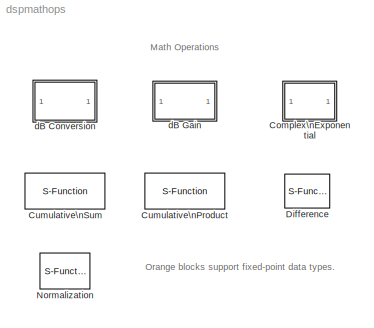
MODEL dspmathops
KIND library
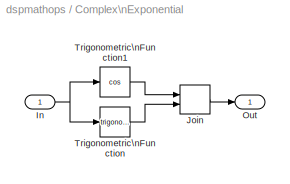
BLOCK [SubSystem] Complex\nExponential
  MaskDescription = Compute the complex exponential function of real inputs via\nEuler's formula, y = cos(x)+jsin(x).
  MaskDisplay = text(0.2, 0.55,'exp(jx)');
  MaskHelp = web(dspbhelp);
  MaskIconFrame = on
  MaskIconOpaque = on
  MaskIconRotate = none
  MaskIconUnits = normalized
  MaskType = Complex Exponential
  MinAlgLoopOccurrences = off
  Ports = [1, 1]
  PropExecContextAcrossSSBoundary = on
  RTWSystemCode = Auto
  TreatAsAtomicUnit = off
BLOCK [Inport] Complex\nExponential/In
  IconDisplay = Port number
  LatchInput = off
BLOCK [RealImagToComplex] Complex\nExponential/Join
  Input = Real and imag
  Ports = [2, 1]
BLOCK [Outport] Complex\nExponential/Out
  BusOutputAsStruct = off
  IconDisplay = Port number
BLOCK [Trigonometry] Complex\nExponential/Trigonometric\nFunction
  Ports = [1, 1]
BLOCK [Trigonometry] Complex\nExponential/Trigonometric\nFunction1
  Operator = cos
  Ports = [1, 1]
BLOCK [S-Function] Cumulative\nProduct
  CopyFcn = dspfixptcopycallback
  DialogController = dspDDGCreate
  DialogControllerArgs = DataTag0
  FunctionName = sdspcumsumprod
  MaskCallbackString = ||||||||||||||||
  MaskDescription = Cumulative product of input matrix or input vector elements along the specified dimension: rows, columns, or channels.  For 1-D and sample-based inputs, each element of the input matrix or vector is a channel.  For frame-based inputs, each column of the input matrix or vector is a channel.
  MaskDisplay = disp([s.str '\\nProduct'])\nport_label('input',s.i1,s.i1s);\nport_label('input',s.i2,s.i2s);\n
  MaskEnableString = on,on,on,on,on,on,on,on,on,on,on,on,on,on,on,on,on
  MaskHelp = web(dspbhelp);
  MaskIconFrame = on
  MaskIconOpaque = on
  MaskIconRotate = none
  MaskIconUnits = autoscale
  MaskInitialization = s = dspblkcumsumprod('icon');\nreset=reset_popup-1;\nfcn=1;\n\ndtInfo = dspGetFixptDataTypeInfo(gcbh,271);\n
  MaskPromptString = Multiply input along:|Reset port:|inter prod mode|inter prod wl|inter prod fl|prod output mode|prod output wl|prod output fl|accum mode|accum wl|accum fl|output mode|output wl|output fl|rm|om|Lock scaling
  MaskSelfModifiable = on
  MaskStyleString = popup(Columns|Rows|Channels (running product)),popup(None|Rising edge|Falling edge|Either edge|Non-zero sample),popup(Same as input|Binary point scaling|Slope and bias scaling),edit,edit,popup(Same as input|Binary point scaling|Slope and bias scaling),edit,edit,popup(Same as product output|Same as input|Binary point scaling|Slope and bias scaling),edit,edit,popup(Same as product output|Same as inp...<+96ch>
  MaskTabNameString = ,,,,,,,,,,,,,,,,
  MaskToolTipString = on,on,on,on,on,on,on,on,on,on,on,on,on,on,on,on,on
  MaskTunableValueString = off,off,off,off,off,off,off,off,off,off,off,off,off,off,off,off,off
  MaskType = Cumulative Product
  MaskValueString = Channels (running product)|None|Same as input|16|15|Same as input|32|30|Same as input|32|30|Same as input|16|15|Floor|off|off
  MaskVarAliasString = ,,,,,,,,,,,,,,,,
  MaskVariables = dim=@1;reset_popup=@2;interProdMode=@3;interProdWordLength=@4;interProdFracLength=@5;prodOutputMode=@6;prodOutputWordLength=@7;prodOutputFracLength=@8;accumMode=@9;accumWordLength=@10;accumFracLength=@11;outputMode=@12;outputWordLength=@13;outputFracLength=@14;roundingMode=@15;overflowMode=@16;LockScale=@17;
  MaskVisibilityString = on,on,on,on,on,on,on,on,on,on,on,on,on,on,on,on,on
  Parameters = dim,reset,fcn,dtInfo.interProdMode,dtInfo.interProdWordLength,dtInfo.interProdFracLength,dtInfo.prodOutputMode,dtInfo.prodOutputWordLength,dtInfo.prodOutputFracLength,dtInfo.accumMode,dtInfo.accumWordLength,dtInfo.accumFracLength,dtInfo.outputMode,dtInfo.outputWordLength,dtInfo.outputFracLength,dtInfo.roundingMode,dtInfo.overflowMode
  Ports = [1, 1]
BLOCK [S-Function] Cumulative\nSum
  CopyFcn = dspfixptcopycallback
  DialogController = dspDDGCreate
  DialogControllerArgs = DataTag1
  FunctionName = sdspcumsumprod
  MaskCallbackString = ||||||||||
  MaskDescription = Cumulative sum of input matrix or input vector elements along the specified dimension: rows, columns, or channels.  For 1-D and sample-based inputs, each element of the input matrix or vector is a channel.  For frame-based inputs, each column of the input matrix or vector is a channel.
  MaskDisplay = disp([s.str '\\nSum'])\nport_label('input',s.i1,s.i1s);\nport_label('input',s.i2,s.i2s);\n
  MaskEnableString = on,on,on,on,on,on,on,on,on,on,on
  MaskHelp = web(dspbhelp);
  MaskIconFrame = on
  MaskIconOpaque = on
  MaskIconRotate = none
  MaskIconUnits = autoscale
  MaskInitialization = s = dspblkcumsumprod('icon');\nreset=reset_popup-1;\nfcn=0;\n\ndtInfo = dspGetFixptDataTypeInfo(gcbh,7);
  MaskPromptString = Sum input along:|Reset port:|accMode|accWL|accFL|outputMode|outputWL|outputFL|rm|om|Lock scaling
  MaskSelfModifiable = on
  MaskStyleString = popup(Columns|Rows|Channels (running sum)),popup(None|Rising edge|Falling edge|Either edge|Non-zero sample),popup(Same as input|Binary point scaling|Slope and bias scaling),edit,edit,popup(Same as accumulator|Same as input|Binary point scaling|Slope and bias scaling),edit,edit,popup(Floor|Nearest),checkbox,checkbox
  MaskTabNameString = ,,,,,,,,,,
  MaskToolTipString = on,on,on,on,on,on,on,on,on,on,on
  MaskTunableValueString = off,off,off,off,off,off,off,off,off,off,off
  MaskType = Cumulative Sum
  MaskValueString = Channels (running sum)|None|Same as input|32|30|Same as accumulator|16|15|Floor|off|off
  MaskVarAliasString = ,,,,,,,,,,
  MaskVariables = dim=@1;reset_popup=@2;accumMode=@3;accumWordLength=@4;accumFracLength=@5;outputMode=@6;outputWordLength=@7;outputFracLength=@8;roundingMode=@9;overflowMode=@10;LockScale=@11;
  MaskVisibilityString = on,on,on,on,on,on,on,on,on,on,on
  Parameters = dim,reset,fcn,-1,0,0,-1,0,0,dtInfo.accumMode,dtInfo.accumWordLength,dtInfo.accumFracLength,dtInfo.outputMode,dtInfo.outputWordLength,dtInfo.outputFracLength,dtInfo.roundingMode,dtInfo.overflowMode
  Ports = [1, 1]
BLOCK [S-Function] Difference
  CopyFcn = dspfixptcopycallback
  DialogController = dspDDGCreate
  DialogControllerArgs = DataTag2
  FunctionName = sdspdiff2
  MaskCallbackString = |||||||||||
  MaskDescription = Difference between adjacent input elements.  For oriented inputs, difference along the specified dimension.
  MaskDisplay = disp(str)
  MaskEnableString = on,off,off,on,on,on,on,on,on,on,on,on
  MaskHelp = web(dspbhelp);
  MaskIconFrame = on
  MaskIconOpaque = on
  MaskIconRotate = none
  MaskIconUnits = autoscale
  MaskInitialization = if (dim==1), str='Row\\nDiff';\nelse str='Column\\nDiff';\nend\ndtInfo = dspGetFixptDataTypeInfo(gcbh,7);
  MaskPromptString = Difference along:|------- Show additional parameters -------|Allow overrides from DSP Fixed-Point Attributes blocks|Fixed-point output attributes:|Output word length:|Output fraction length:|Fixed-point accumulator attributes:|Accumulator word length:|Accumulator fraction length:|Round integer calculations toward:|Saturate on integer overflow|Lock scaling
  MaskSelfModifiable = on
  MaskStyleString = popup(Rows|Columns),checkbox,checkbox,popup(Same as accumulator|Same as input|Binary point scaling|Slope and bias scaling|User-defined),edit,edit,popup(Inherit via internal rule|Same as input|Binary point scaling|Slope and bias scaling|User-defined),edit,edit,popup(Floor|Nearest),checkbox,checkbox
  MaskTabNameString = ,,,,,,,,,,,
  MaskToolTipString = on,on,on,on,on,on,on,on,on,on,on,on
  MaskTunableValueString = off,off,off,off,off,off,off,off,off,off,off,off
  MaskType = Difference
  MaskValueString = Columns|off|on|Same as accumulator|16|15|Inherit via internal rule|32|30|Floor|off|off
  MaskVarAliasString = ,,,,,,,,,,,
  MaskVariables = dim=@1;additionalParams=@2;allowOverrides=@3;outputMode=@4;outputWordLength=@5;outputFracLength=@6;accumMode=@7;accumWordLength=@8;accumFracLength=@9;roundingMode=@10;overflowMode=@11;LockScale=@12;
  MaskVisibilityString = on,off,off,on,on,on,on,on,on,on,on,on
  Parameters = dim,dtInfo.accumMode,dtInfo.accumWordLength,dtInfo.accumFracLength,dtInfo.outputMode,dtInfo.outputWordLength,dtInfo.outputFracLength,dtInfo.roundingMode,dtInfo.overflowMode
  Ports = [1, 1]
BLOCK [S-Function] Normalization
  CopyFcn = dspfixptcopycallback
  DialogController = dspDDGCreate
  DialogControllerArgs = DataTag3
  FunctionName = sdsp2norm2
  MaskCallbackString = |||||||||||||||
  MaskDescription = Normalize each input element by the vector 2-norm, sqrt(u'u)+b, or by the squared 2-norm, u'u+b, where b is a bias used to protect against divide-by-zero.  Normalization is performed along the columns for matrix inputs.
  MaskDisplay = plot(x,y)\ntext(44,80,'u'); text(44,25,'u'); text(72,39,sqr_txt)
  MaskEnableString = on,on,off,off,on,on,on,on,on,on,on,on,on,on,on,on
  MaskHelp = web(dspbhelp);
  MaskIconFrame = on
  MaskIconOpaque = on
  MaskIconRotate = none
  MaskIconUnits = autoscale
  MaskInitialization = x = [0 NaN 100 NaN 20 80 NaN 30 30 NaN 36 36 NaN 58 58 NaN 64 64];\ny = [0 NaN 100 NaN 60 60 NaN 9 43 NaN 9 43 NaN 9 43 NaN 9 43];\nif NormType==1, sqr_txt = ' '; else sqr_txt = '2'; end\ndtInfo = dspGetFixptDataTypeInfo(gcbh,15);
  MaskPromptString = Norm:|Normalization bias:|--------------- Show additional parameters ---------------|Allow overrides from DSP Attributes blocks|Fixed-point output attributes:|Output word length:|Output fraction length:|Fixed-point accumulator attributes|Accumulator word length:|Accumulator fraction length:|Fixed-point product output attributes:|Product output word length:|Product output fraction length:|Round int...<+67ch>
  MaskSelfModifiable = on
  MaskStyleString = popup(2-norm|Squared 2-norm),edit,checkbox,checkbox,popup(Same as product output|Same as accumulator|Same as input|Binary point scaling|Slope and bias scaling),edit,edit,popup(Same as product output|Same as input|Binary point scaling|Slope and bias scaling),edit,edit,popup(Same as input|Binary point scaling|Slope and bias scaling),edit,edit,popup(Floor|Nearest),checkbox,checkbox
  MaskTabNameString = ,,,,,,,,,,,,,,,
  MaskToolTipString = on,on,on,on,on,on,on,on,on,on,on,on,on,on,on,on
  MaskTunableValueString = on,on,off,off,off,off,off,off,off,off,off,off,off,off,off,off
  MaskType = Normalization
  MaskValueString = Squared 2-norm|1e-10|off|on|Same as product output|32|32|Same as product output|32|30|Same as input|32|32|Floor|off|off
  MaskVarAliasString = ,,,,,,,,,,,,,,,
  MaskVariables = NormType=@1;Bias=@2;additionalParams=@3;allowOverrides=@4;outputMode=@5;outputWordLength=@6;outputFracLength=@7;accumMode=@8;accumWordLength=@9;accumFracLength=@10;prodOutputMode=@11;prodOutputWordLength=@12;prodOutputFracLength=@13;roundingMode=@14;overflowMode=@15;LockScale=@16;
  MaskVisibilityString = on,on,off,off,on,on,on,on,on,on,on,on,on,on,on,on
  Parameters = Bias,NormType,dtInfo.prodOutputMode,dtInfo.prodOutputWordLength,dtInfo.prodOutputFracLength,dtInfo.accumMode,dtInfo.accumWordLength,dtInfo.accumFracLength,dtInfo.outputMode,dtInfo.outputWordLength,dtInfo.outputFracLength,dtInfo.roundingMode,dtInfo.overflowMode
  Ports = [1, 1]
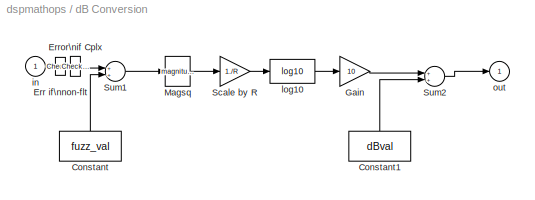
BLOCK [SubSystem] dB Conversion
  MaskCallbackString = dspblkdb2|dspblkdb2||
  MaskDescription = Convert input of Watts or Volts to decibels. Voltage inputs are first converted to power relative to the specified load resistance, where P = (V^2)/R.  When converting to dBm, the power is scaled to units of mWatts.
  MaskDisplay = disp(str)\n\n
  MaskEnableString = on,on,on,on
  MaskHelp = web(dspbhelp);
  MaskIconFrame = on
  MaskIconOpaque = on
  MaskIconRotate = none
  MaskIconUnits = autoscale
  MaskInitialization = [str fuzz_val dBval] = dspblkdb2('init');\ndspblkdb2('checkparam');\ndspblkdb2('update');
  MaskPromptString = Convert to:|Input signal:|Load resistance (ohms):|Add  eps to input to protect against  \"log(0) = -inf\"
  MaskSelfModifiable = on
  MaskStyleString = popup(dB|dBm),popup(Power|Amplitude),edit,checkbox
  MaskTabNameString = ,,,
  MaskToolTipString = on,on,on,on
  MaskTunableValueString = on,off,on,on
  MaskType = dB Conversion
  MaskValueString = dB|Amplitude|1|off
  MaskVarAliasString = ,,,
  MaskVariables = dBtype=@1;intype=@2;R=@3;fuzz=@4;
  MaskVisibilityString = on,on,on,on
  MinAlgLoopOccurrences = off
  Ports = [1, 1]
  PropExecContextAcrossSSBoundary = on
  RTWSystemCode = Auto
  TreatAsAtomicUnit = off
BLOCK [Constant] dB Conversion/Constant
  OutDataTypeMode = Inherit via back propagation
  Value = fuzz_val
BLOCK [Constant] dB Conversion/Constant1
  OutDataTypeMode = Inherit via back propagation
  Value = dBval
BLOCK [Reference] dB Conversion/Err if\nnon-flt  REF=dspsigattribs/Check Signal\nAttributes
  Complexity = Ignore
  DatatypeCheckMethod = Is...
  DatatypeGeneral = Floating-point
  Dimensions = 1-D
  DimsCheckMethod = Ignore
  DtypeFixedSpecific = Any fixed-point
  DtypeFloatSpecific = Any floating-point
  DtypeIntSpecific = Any integer
  Frame = Ignore
  Ports = [1, 1]
  SampleMode = Ignore
  SigAttribCheckMethod = Does not match attributes exactly
  SourceBlock = dspsigattribs/Check Signal\nAttributes
  SourceType = Check Signal Attributes
BLOCK [Reference] dB Conversion/Error\nif Cplx  REF=dspsigattribs/Check Signal\nAttributes
  Complexity = Complex
  DatatypeCheckMethod = Ignore
  DatatypeGeneral = Boolean
  Dimensions = 1-D
  DimsCheckMethod = Ignore
  DtypeFixedSpecific = Any fixed-point
  DtypeFloatSpecific = Any floating-point
  DtypeIntSpecific = Any integer
  Frame = Ignore
  Ports = [1, 1]
  SampleMode = Ignore
  SigAttribCheckMethod = Matches attributes exactly
  SourceBlock = dspsigattribs/Check Signal\nAttributes
  SourceType = Check Signal Attributes
BLOCK [Gain] dB Conversion/Gain
  Gain = 10
BLOCK [Math] dB Conversion/Magsq
  Operator = magnitude^2
  Ports = [1, 1]
BLOCK [Gain] dB Conversion/Scale by R
  Gain = 1./R
BLOCK [Sum] dB Conversion/Sum1
  Ports = [2, 1]
BLOCK [Sum] dB Conversion/Sum2
  Ports = [2, 1]
BLOCK [Inport] dB Conversion/in
  IconDisplay = Port number
  LatchInput = off
BLOCK [Math] dB Conversion/log10
  Operator = log10
  Ports = [1, 1]
BLOCK [Outport] dB Conversion/out
  BusOutputAsStruct = off
  IconDisplay = Port number
  InitialOutput = 0
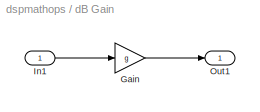
BLOCK [SubSystem] dB Gain
  CopyFcn = dspfixptcopycallback
  MaskCallbackString = |
  MaskDescription = Apply a gain specified in dB.
  MaskDisplay = fprintf(s)
  MaskEnableString = on,on
  MaskHelp = web(dspbhelp);
  MaskIconFrame = on
  MaskIconOpaque = on
  MaskIconRotate = none
  MaskIconUnits = autoscale
  MaskInitialization = if isempty(dB)\n  dB = 0; g = 0;\n  s  = ['dB Gain'];\nelse\n  g=10.^(dB/(10*intype));\n  if (isscalar(dB))\n    s = sprintf('%g dB\\n(%g)',dB,g);\n  else\n    s = ['dB Gain'];\n  end\nend\n
  MaskPromptString = Gain, dB:|Input signal:
  MaskSelfModifiable = on
  MaskStyleString = edit,popup(Power|Amplitude)
  MaskTabNameString = ,
  MaskToolTipString = on,on
  MaskTunableValueString = on,on
  MaskType = dB Gain
  MaskValueString = -40|Amplitude
  MaskVarAliasString = ,
  MaskVariables = dB=@1;intype=@2;
  MaskVisibilityString = on,on
  MinAlgLoopOccurrences = off
  Ports = [1, 1]
  PropExecContextAcrossSSBoundary = on
  RTWSystemCode = Auto
  TreatAsAtomicUnit = off
BLOCK [Gain] dB Gain/Gain
  Gain = g
  OutDataTypeMode = Inherit via internal rule
  ParameterDataTypeMode = Inherit via internal rule
  SaturateOnIntegerOverflow = off
BLOCK [Inport] dB Gain/In1
  IconDisplay = Port number
  LatchInput = off
BLOCK [Outport] dB Gain/Out1
  BusOutputAsStruct = off
  IconDisplay = Port number
ANNOTATION (root): Math Operations
ANNOTATION (root): Orange blocks support fixed-point data types.
NET Complex\nExponential/In:1 -> Complex\nExponential/Trigonometric\nFunction1:1, Complex\nExponential/Trigonometric\nFunction:1
LINE Complex\nExponential/Join:1 -> Complex\nExponential/Out:1
LINE Complex\nExponential/Trigonometric\nFunction1:1 -> Complex\nExponential/Join:1
LINE Complex\nExponential/Trigonometric\nFunction:1 -> Complex\nExponential/Join:2
LINE dB Conversion/Constant1:1 -> dB Conversion/Sum2:2
LINE dB Conversion/Constant:1 -> dB Conversion/Sum1:2
LINE dB Conversion/Err if\nnon-flt:1 -> dB Conversion/Error\nif Cplx:1
LINE dB Conversion/Error\nif Cplx:1 -> dB Conversion/Sum1:1
LINE dB Conversion/Gain:1 -> dB Conversion/Sum2:1
LINE dB Conversion/Magsq:1 -> dB Conversion/Scale by R:1
LINE dB Conversion/Scale by R:1 -> dB Conversion/log10:1
LINE dB Conversion/Sum1:1 -> dB Conversion/Magsq:1
LINE dB Conversion/Sum2:1 -> dB Conversion/out:1
LINE dB Conversion/in:1 -> dB Conversion/Err if\nnon-flt:1
LINE dB Conversion/log10:1 -> dB Conversion/Gain:1
LINE dB Gain/Gain:1 -> dB Gain/Out1:1
LINE dB Gain/In1:1 -> dB Gain/Gain:1
note: NET lines group one-source signal fan-out (src -> all destinations, sorted); 1:1 wires keep LINE
